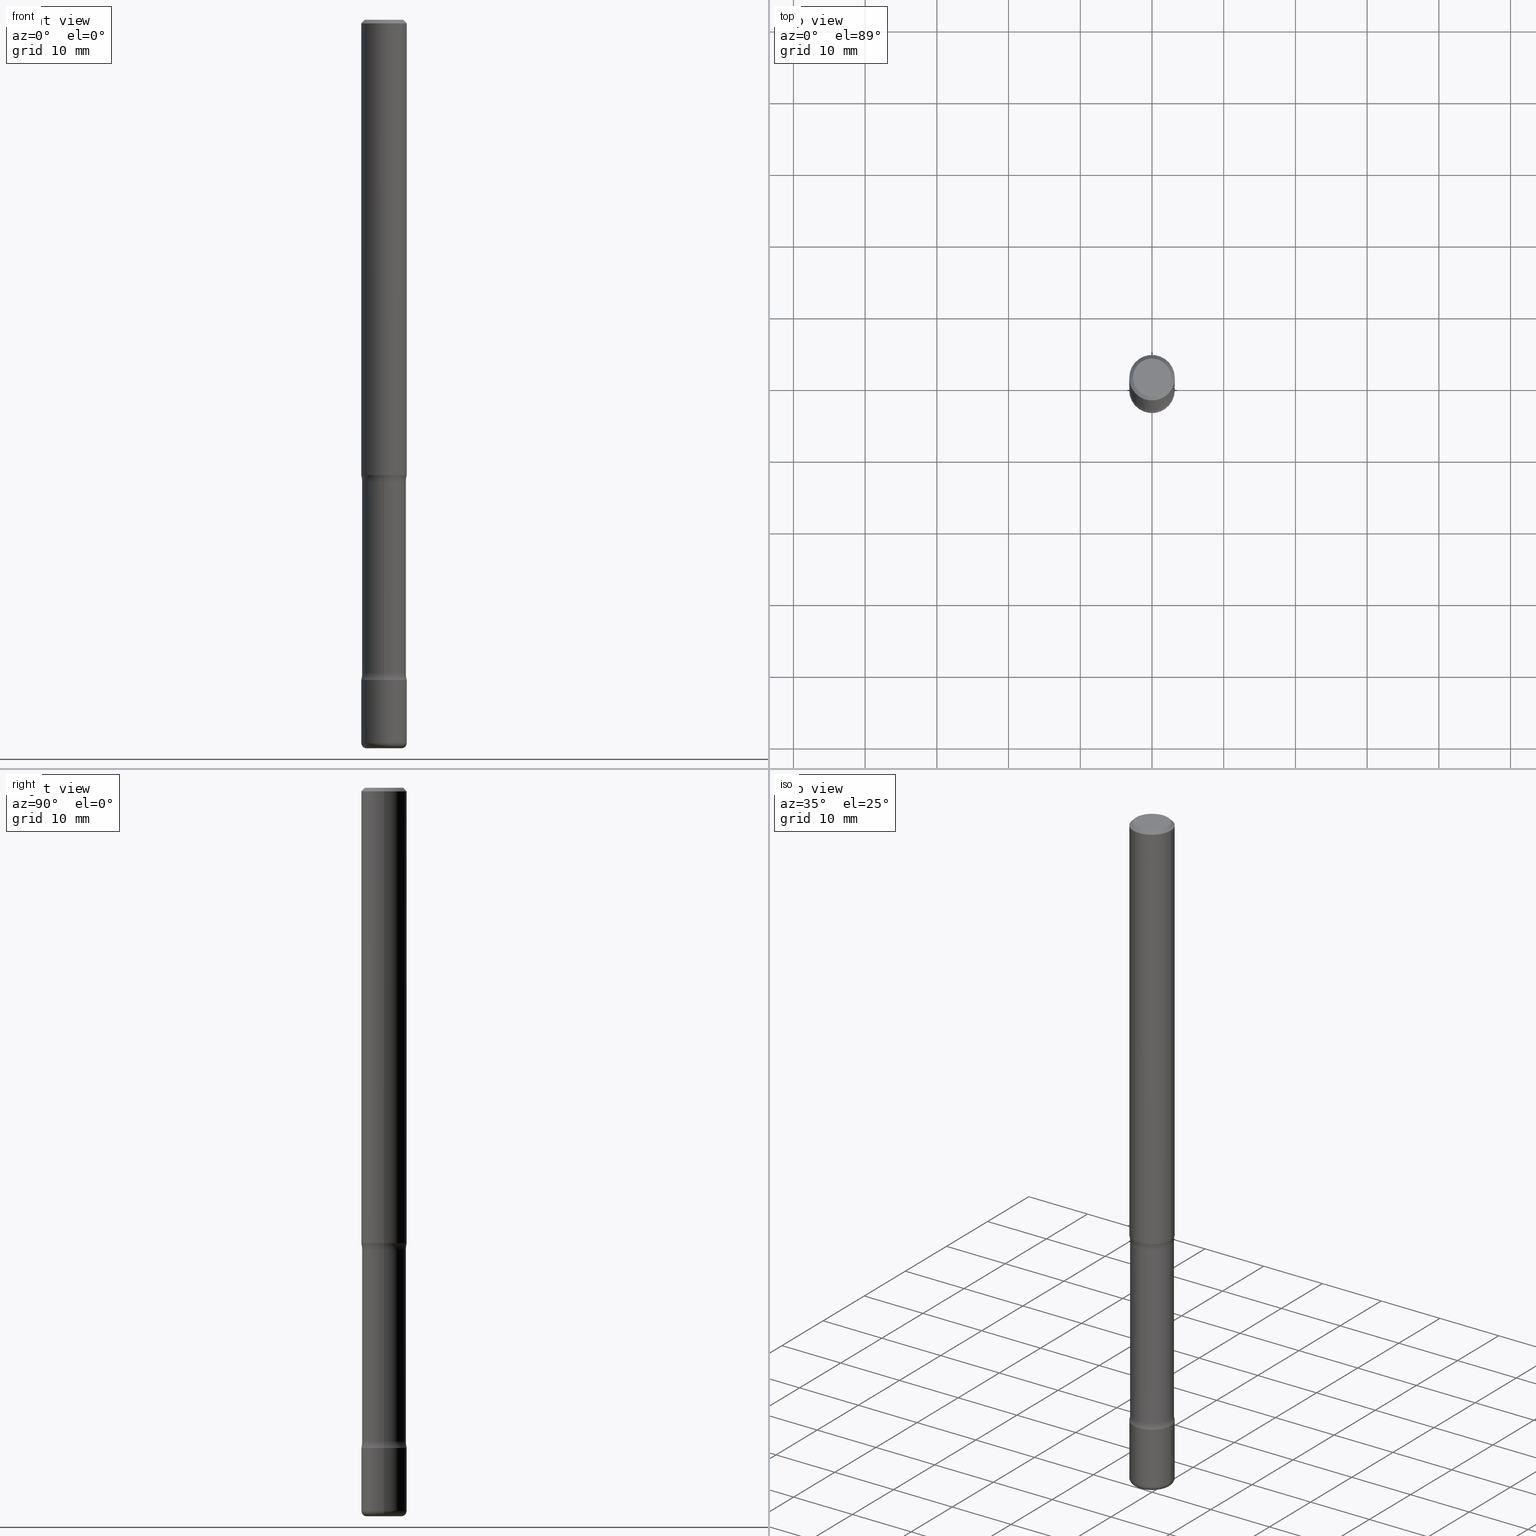
[diagram: canonical four-view strip — front | top / right | iso, engineering-drawing reading convention]
A machine part, canonical four-view strip (front | top / right | iso — engineering-drawing reading convention). The complete STEP part file that produces these views, byte-faithful:
ISO-10303-21;
HEADER;
FILE_DESCRIPTION (( 'STEP AP203' ),
    '1' );
FILE_NAME ('32756.STEP',
    '2023-03-11T07:00:17',
    ( '' ),
    ( '' ),
    'SwSTEP 2.0',
    'SolidWorks 2022',
    '' );
FILE_SCHEMA (( 'CONFIG_CONTROL_DESIGN' ));
ENDSEC;

DATA;
#1 = DIRECTION ( 'NONE',  ( 2.447145547181448741E-29, -3.489080150302255863E-15, -1.000000000000000000 ) ) ;
#2 = ORIENTED_EDGE ( 'NONE', *, *, #676, .T. ) ;
#3 = AXIS2_PLACEMENT_3D ( 'NONE', #505, #744, #300 ) ;
#4 = AXIS2_PLACEMENT_3D ( 'NONE', #788, #259, #665 ) ;
#5 = VECTOR ( 'NONE', #593, 39.37007874015748143 ) ;
#6 = APPROVAL_STATUS ( 'not_yet_approved' ) ;
#7 = AXIS2_PLACEMENT_3D ( 'NONE', #369, #420, #52 ) ;
#8 = DIRECTION ( 'NONE',  ( -1.000000000000000000, 6.982962677686266711E-15, 0.000000000000000000 ) ) ;
#9 = EDGE_CURVE ( 'NONE', #501, #189, #649, .T. ) ;
#10 = DATE_AND_TIME ( #580, #362 ) ;
#11 = CARTESIAN_POINT ( 'NONE',  ( 1.060531293745186782E-27, -1.514157617551786646E-13, -43.36719777667440923 ) ) ;
#12 = DIRECTION ( 'NONE',  ( 6.982962677686265922E-15, 1.000000000000000000, -3.489080150302255863E-15 ) ) ;
#13 = ORIENTED_EDGE ( 'NONE', *, *, #9, .T. ) ;
#14 = AXIS2_PLACEMENT_3D ( 'NONE', #745, #305, #507 ) ;
#15 = PERSON_AND_ORGANIZATION ( #144, #338 ) ;
#16 = AXIS2_PLACEMENT_3D ( 'NONE', #610, #252, #180 ) ;
#17 = CARTESIAN_POINT ( 'NONE',  ( 0.1250000000000000000, -1.473405124991807072E-14, -3.970000000000000195 ) ) ;
#18 = CIRCLE ( 'NONE', #485, 0.1250000000000000000 ) ;
#19 = CARTESIAN_POINT ( 'NONE',  ( 6.113672015462842613E-29, -8.728703347107864943E-15, -2.500000000000000000 ) ) ;
#20 = CARTESIAN_POINT ( 'NONE',  ( 6.199263423679323022E-29, -8.850905193967376503E-15, -2.535000000000000586 ) ) ;
#21 = EDGE_LOOP ( 'NONE', ( #60, #621 ) ) ;
#22 = CARTESIAN_POINT ( 'NONE',  ( 0.000000000000000000, 0.000000000000000000, 0.000000000000000000 ) ) ;
#23 = DIRECTION ( 'NONE',  ( -2.445468806185136877E-29, 3.491481338843145188E-15, 1.000000000000000000 ) ) ;
#24 = ORIENTED_EDGE ( 'NONE', *, *, #320, .F. ) ;
#25 = EDGE_CURVE ( 'NONE', #187, #667, #283, .T. ) ;
#26 = EDGE_CURVE ( 'NONE', #667, #207, #321, .T. ) ;
#27 = CIRCLE ( 'NONE', #192, 0.1250000000000000000 ) ;
#28 = AXIS2_PLACEMENT_3D ( 'NONE', #490, #720, #167 ) ;
#29 = CONICAL_SURFACE ( 'NONE', #349, 0.1249999999999996808, 0.7853981633974477239 ) ;
#30 = DIRECTION ( 'NONE',  ( 2.447145547181448741E-29, -3.489080150302255468E-15, -1.000000000000000000 ) ) ;
#31 = CARTESIAN_POINT ( 'NONE',  ( 9.775453865654978233E-29, -1.395497299716722484E-14, -3.997119036516930457 ) ) ;
#32 = DIRECTION ( 'NONE',  ( 1.000000000000000000, -6.982962677686266711E-15, 0.000000000000000000 ) ) ;
#33 = ORIENTED_EDGE ( 'NONE', *, *, #256, .T. ) ;
#34 = DIRECTION ( 'NONE',  ( 2.447145547181448741E-29, -3.489080150302255468E-15, -1.000000000000000000 ) ) ;
#35 = VERTEX_POINT ( 'NONE', #584 ) ;
#36 = ADVANCED_FACE ( 'NONE', ( #566 ), #551, .F. ) ;
#37 = CARTESIAN_POINT ( 'NONE',  ( 4.890937612370279289E-31, -6.982962677686299005E-17, -0.02000000000000002470 ) ) ;
#38 = EDGE_LOOP ( 'NONE', ( #786, #376, #101, #504 ) ) ;
#39 = DIRECTION ( 'NONE',  ( 6.982962677686265922E-15, 1.000000000000000000, -4.370956789862821150E-15 ) ) ;
#40 = CC_DESIGN_PERSON_AND_ORGANIZATION_ASSIGNMENT ( #77, #454, ( #770 ) ) ;
#41 = CIRCLE ( 'NONE', #684, 0.1250000000000000000 ) ;
#42 = AXIS2_PLACEMENT_3D ( 'NONE', #597, #223, #340 ) ;
#43 = FACE_OUTER_BOUND ( 'NONE', #316, .T. ) ;
#44 = CARTESIAN_POINT ( 'NONE',  ( 9.597836427155352739E-18, -1.395586652513355726E-14, -3.997119036516930457 ) ) ;
#45 = CIRCLE ( 'NONE', #125, 0.1249999999999996808 ) ;
#46 = ORIENTED_EDGE ( 'NONE', *, *, #752, .F. ) ;
#47 = ORIENTED_EDGE ( 'NONE', *, *, #284, .T. ) ;
#48 = EDGE_CURVE ( 'NONE', #440, #287, #243, .T. ) ;
#49 = FACE_OUTER_BOUND ( 'NONE', #535, .T. ) ;
#50 = EDGE_LOOP ( 'NONE', ( #790, #789 ) ) ;
#51 = ORIENTED_EDGE ( 'NONE', *, *, #666, .F. ) ;
#52 = DIRECTION ( 'NONE',  ( 1.000000000000000000, -6.982962677686262766E-15, 0.000000000000000000 ) ) ;
#53 = DIRECTION ( 'NONE',  ( 1.000000000000000000, -6.982962677686266711E-15, 4.883557194083112901E-29 ) ) ;
#54 = VERTEX_POINT ( 'NONE', #456 ) ;
#55 = ORIENTED_EDGE ( 'NONE', *, *, #175, .F. ) ;
#56 = CIRCLE ( 'NONE', #108, 0.1250000000000000278 ) ;
#57 = CIRCLE ( 'NONE', #711, 0.1250000000000000000 ) ;
#58 =( GEOMETRIC_REPRESENTATION_CONTEXT ( 3 ) GLOBAL_UNCERTAINTY_ASSIGNED_CONTEXT ( ( #403 ) ) GLOBAL_UNIT_ASSIGNED_CONTEXT ( ( #352, #196, #344 ) ) REPRESENTATION_CONTEXT ( 'NONE', 'WORKASPACE' ) );
#59 = CARTESIAN_POINT ( 'NONE',  ( 0.1250000000000000000, -9.601573681818649859E-15, -2.500000000000000000 ) ) ;
#60 = ORIENTED_EDGE ( 'NONE', *, *, #86, .T. ) ;
#61 = DIRECTION ( 'NONE',  ( -2.445468806185136597E-29, 3.491481338843145583E-15, 1.000000000000000000 ) ) ;
#62 = EDGE_CURVE ( 'NONE', #295, #251, #591, .T. ) ;
#63 = ORIENTED_EDGE ( 'NONE', *, *, #509, .F. ) ;
#64 = DIRECTION ( 'NONE',  ( 2.447145547181448741E-29, -3.489080150302255468E-15, -1.000000000000000000 ) ) ;
#65 = DIRECTION ( 'NONE',  ( -6.982962677686266711E-15, -1.000000000000000000, 3.491481338843145583E-15 ) ) ;
#66 = ORIENTED_EDGE ( 'NONE', *, *, #138, .F. ) ;
#67 = ADVANCED_FACE ( 'NONE', ( #273 ), #205, .F. ) ;
#68 = VERTEX_POINT ( 'NONE', #464 ) ;
#69 = VECTOR ( 'NONE', #23, 39.37007874015748143 ) ;
#70 = CARTESIAN_POINT ( 'NONE',  ( 8.779233014204640876E-29, -1.253441800644689261E-14, -3.590000000000000302 ) ) ;
#71 = AXIS2_PLACEMENT_3D ( 'NONE', #659, #291, #549 ) ;
#72 = CIRCLE ( 'NONE', #228, 0.08250000000000000389 ) ;
#73 = COORDINATED_UNIVERSAL_TIME_OFFSET ( 5, 0, .BEHIND. ) ;
#74 = CALENDAR_DATE ( 2023, 11, 3 ) ;
#75 = ORIENTED_EDGE ( 'NONE', *, *, #705, .F. ) ;
#76 = CC_DESIGN_PERSON_AND_ORGANIZATION_ASSIGNMENT ( #327, #195, ( #554 ) ) ;
#77 = PERSON_AND_ORGANIZATION ( #144, #338 ) ;
#78 = FACE_OUTER_BOUND ( 'NONE', #103, .T. ) ;
#79 = DESIGN_CONTEXT ( 'detailed design', #648, 'design' ) ;
#80 = AXIS2_PLACEMENT_3D ( 'NONE', #267, #461, #522 ) ;
#81 = PERSON_AND_ORGANIZATION ( #144, #338 ) ;
#82 = AXIS2_PLACEMENT_3D ( 'NONE', #686, #65, #318 ) ;
#83 = AXIS2_PLACEMENT_3D ( 'NONE', #533, #466, #714 ) ;
#84 = DIRECTION ( 'NONE',  ( -2.445468806185136597E-29, 3.491481338843145583E-15, 1.000000000000000000 ) ) ;
#85 = ORIENTED_EDGE ( 'NONE', *, *, #324, .F. ) ;
#86 = EDGE_CURVE ( 'NONE', #106, #679, #637, .T. ) ;
#87 = DIRECTION ( 'NONE',  ( 1.000000000000000000, -6.982962677686264344E-15, 4.883557194083112340E-29 ) ) ;
#88 = CARTESIAN_POINT ( 'NONE',  ( 6.111785681841991381E-29, -8.731404684216365878E-15, -2.500000000000000000 ) ) ;
#89 = CARTESIAN_POINT ( 'NONE',  ( -1.680822009453962116E-15, -0.2450000000000086831, -2.534999999999999698 ) ) ;
#90 = EDGE_CURVE ( 'NONE', #106, #251, #280, .T. ) ;
#91 = TOROIDAL_SURFACE ( 'NONE', #217, 0.09499999999999998723, 0.02999999999999998848 ) ;
#92 = AXIS2_PLACEMENT_3D ( 'NONE', #729, #173, #428 ) ;
#93 = CARTESIAN_POINT ( 'NONE',  ( 8.728703347108443769E-16, 0.1249999999999912847, -2.500000000000000444 ) ) ;
#94 = AXIS2_PLACEMENT_3D ( 'NONE', #603, #30, #288 ) ;
#95 = LINE ( 'NONE', #481, #639 ) ;
#96 = CARTESIAN_POINT ( 'NONE',  ( 0.09499999999999998723, -1.462930680975277735E-14, -4.000000000000000000 ) ) ;
#97 = ORIENTED_EDGE ( 'NONE', *, *, #692, .F. ) ;
#98 = DIRECTION ( 'NONE',  ( -6.982962677686265922E-15, -1.000000000000000000, 0.000000000000000000 ) ) ;
#99 = CARTESIAN_POINT ( 'NONE',  ( 9.781532051766610106E-29, -1.394626868870649960E-14, -3.997119036516930457 ) ) ;
#100 = FACE_OUTER_BOUND ( 'NONE', #312, .T. ) ;
#101 = ORIENTED_EDGE ( 'NONE', *, *, #215, .T. ) ;
#102 = EDGE_CURVE ( 'NONE', #801, #775, #377, .T. ) ;
#103 = EDGE_LOOP ( 'NONE', ( #182, #385, #361, #304 ) ) ;
#104 = LINE ( 'NONE', #44, #285 ) ;
#105 = FACE_OUTER_BOUND ( 'NONE', #38, .T. ) ;
#106 = VERTEX_POINT ( 'NONE', #758 ) ;
#107 = VERTEX_POINT ( 'NONE', #774 ) ;
#108 = AXIS2_PLACEMENT_3D ( 'NONE', #174, #111, #803 ) ;
#109 = TOROIDAL_SURFACE ( 'NONE', #264, 0.2450000000000001066, 0.1250000000000000000 ) ;
#110 = DIRECTION ( 'NONE',  ( 1.000000000000000000, -6.982962677686262766E-15, 0.000000000000000000 ) ) ;
#111 = DIRECTION ( 'NONE',  ( -2.445468806185136597E-29, 3.491481338843145583E-15, 1.000000000000000000 ) ) ;
#112 = ORIENTED_EDGE ( 'NONE', *, *, #676, .F. ) ;
#113 = PRODUCT_DEFINITION ( 'UNKNOWN', '', #554, #79 ) ;
#114 = DIRECTION ( 'NONE',  ( 1.000000000000000000, -6.982962677686261189E-15, 0.000000000000000000 ) ) ;
#115 = ORIENTED_EDGE ( 'NONE', *, *, #793, .F. ) ;
#116 = VERTEX_POINT ( 'NONE', #762 ) ;
#117 = ORIENTED_EDGE ( 'NONE', *, *, #154, .T. ) ;
#118 = EDGE_LOOP ( 'NONE', ( #120, #547 ) ) ;
#119 = CARTESIAN_POINT ( 'NONE',  ( -0.1199999999999999817, -7.876052064195743962E-15, -2.500000000000000000 ) ) ;
#120 = ORIENTED_EDGE ( 'NONE', *, *, #48, .F. ) ;
#121 = FACE_OUTER_BOUND ( 'NONE', #118, .T. ) ;
#122 = EDGE_LOOP ( 'NONE', ( #51, #33, #718, #463 ) ) ;
#123 = AXIS2_PLACEMENT_3D ( 'NONE', #89, #668, #157 ) ;
#124 = AXIS2_PLACEMENT_3D ( 'NONE', #141, #396, #129 ) ;
#125 = AXIS2_PLACEMENT_3D ( 'NONE', #171, #425, #664 ) ;
#126 = DIRECTION ( 'NONE',  ( -2.445468806185136597E-29, 3.491481338843145583E-15, 1.000000000000000000 ) ) ;
#127 = ADVANCED_FACE ( 'NONE', ( #142 ), #91, .T. ) ;
#128 = EDGE_CURVE ( 'NONE', #315, #401, #526, .T. ) ;
#129 = DIRECTION ( 'NONE',  ( 6.982962677686265922E-15, 1.000000000000000000, -4.553079989440434359E-15 ) ) ;
#130 = ORIENTED_EDGE ( 'NONE', *, *, #766, .T. ) ;
#131 = DIRECTION ( 'NONE',  ( 6.982962677686265922E-15, 1.000000000000000000, -3.489080150302255468E-15 ) ) ;
#132 = DATE_AND_TIME ( #447, #749 ) ;
#133 = ADVANCED_FACE ( 'NONE', ( #78 ), #534, .T. ) ;
#134 = DIRECTION ( 'NONE',  ( 1.000000000000000000, -6.860497997771530774E-15, 4.840828285702750353E-29 ) ) ;
#135 = PERSON_AND_ORGANIZATION_ROLE ( 'creator' ) ;
#136 = DIRECTION ( 'NONE',  ( 1.000000000000000000, -6.982962677686265922E-15, 4.876176775795935793E-29 ) ) ;
#137 = DIRECTION ( 'NONE',  ( 2.447145547181448741E-29, -3.489080150302255468E-15, -1.000000000000000000 ) ) ;
#138 = EDGE_CURVE ( 'NONE', #423, #315, #416, .T. ) ;
#139 = CLOSED_SHELL ( 'NONE', ( #609, #754, #258, #585, #446, #354 ) ) ;
#140 = AXIS2_PLACEMENT_3D ( 'NONE', #486, #179, #780 ) ;
#141 = CARTESIAN_POINT ( 'NONE',  ( 8.779174328269769684E-29, -1.253450204804582438E-14, -3.590000000000000302 ) ) ;
#142 = FACE_OUTER_BOUND ( 'NONE', #199, .T. ) ;
#143 = ORIENTED_EDGE ( 'NONE', *, *, #102, .T. ) ;
#144 = PERSON ( 'UNSPECIFIED', 'UNSPECIFIED', 'UNSPECIFIED', ('UNSPECIFIED'), ('UNSPECIFIED'), ('UNSPECIFIED') ) ;
#145 = APPROVAL_DATE_TIME ( #148, #765 ) ;
#146 = CYLINDRICAL_SURFACE ( 'NONE', #657, 0.1250000000000000000 ) ;
#147 = DIRECTION ( 'NONE',  ( 1.000000000000000000, -6.982962677686266711E-15, 4.883557194083112901E-29 ) ) ;
#148 = DATE_AND_TIME ( #201, #194 ) ;
#149 = DIRECTION ( 'NONE',  ( 1.000000000000000000, -6.982962677686262766E-15, 0.000000000000000000 ) ) ;
#150 = AXIS2_PLACEMENT_3D ( 'NONE', #716, #350, #39 ) ;
#151 = CIRCLE ( 'NONE', #337, 0.1249999999999996808 ) ;
#152 = FACE_OUTER_BOUND ( 'NONE', #122, .T. ) ;
#153 = DIRECTION ( 'NONE',  ( -0.7071067811865471286, 2.468850131082252722E-15, -0.7071067811865479058 ) ) ;
#154 = EDGE_CURVE ( 'NONE', #107, #662, #768, .T. ) ;
#155 = CYLINDRICAL_SURFACE ( 'NONE', #457, 0.1199999999999999817 ) ;
#156 = CARTESIAN_POINT ( 'NONE',  ( 6.199263423679323022E-29, -8.850905193967376503E-15, -2.535000000000000586 ) ) ;
#157 = DIRECTION ( 'NONE',  ( 6.860497997771530774E-15, 1.000000000000000000, 0.000000000000000000 ) ) ;
#158 = EDGE_CURVE ( 'NONE', #667, #187, #177, .T. ) ;
#159 = PLANE ( 'NONE',  #71 ) ;
#160 = EDGE_LOOP ( 'NONE', ( #242, #319, #233, #687 ) ) ;
#161 = AXIS2_PLACEMENT_3D ( 'NONE', #704, #471, #647 ) ;
#162 = AXIS2_PLACEMENT_3D ( 'NONE', #755, #255, #699 ) ;
#163 = CARTESIAN_POINT ( 'NONE',  ( 8.728703347108718885E-16, 0.1249999999999873296, -3.625000000000000444 ) ) ;
#164 = CARTESIAN_POINT ( 'NONE',  ( 8.379555213224406338E-16, 0.1199999999999875888, -3.590000000000000746 ) ) ;
#165 = DIRECTION ( 'NONE',  ( -2.445468806185136877E-29, 3.491481338843145188E-15, 1.000000000000000000 ) ) ;
#166 = EDGE_CURVE ( 'NONE', #801, #35, #772, .T. ) ;
#167 = DIRECTION ( 'NONE',  ( 1.000000000000000000, -6.982962677686265922E-15, 4.876176775795935793E-29 ) ) ;
#168 = ORIENTED_EDGE ( 'NONE', *, *, #489, .T. ) ;
#169 = PLANE ( 'NONE',  #497 ) ;
#170 = ORIENTED_EDGE ( 'NONE', *, *, #284, .F. ) ;
#171 = CARTESIAN_POINT ( 'NONE',  ( 4.890937612370279289E-31, -6.982962677686299005E-17, -0.02000000000000002470 ) ) ;
#172 = ORIENTED_EDGE ( 'NONE', *, *, #193, .F. ) ;
#173 = DIRECTION ( 'NONE',  ( -2.445468806185136597E-29, 3.491481338843145583E-15, 1.000000000000000000 ) ) ;
#174 = CARTESIAN_POINT ( 'NONE',  ( 9.708511160554992872E-29, -1.386118091520728738E-14, -3.970000000000000195 ) ) ;
#175 = EDGE_CURVE ( 'NONE', #245, #712, #430, .T. ) ;
#176 = ORIENTED_EDGE ( 'NONE', *, *, #9, .F. ) ;
#177 = CIRCLE ( 'NONE', #150, 0.1250000000000000000 ) ;
#178 = CONICAL_SURFACE ( 'NONE', #392, 1127.411546571649069, 1.535889741755015248 ) ;
#179 = DIRECTION ( 'NONE',  ( -2.438088387897960049E-29, 3.491481338843145188E-15, 1.000000000000000000 ) ) ;
#180 = DIRECTION ( 'NONE',  ( 1.000000000000000000, -6.982962677686261189E-15, 0.000000000000000000 ) ) ;
#181 = FACE_OUTER_BOUND ( 'NONE', #751, .T. ) ;
#182 = ORIENTED_EDGE ( 'NONE', *, *, #374, .T. ) ;
#183 = ORIENTED_EDGE ( 'NONE', *, *, #692, .T. ) ;
#184 = CARTESIAN_POINT ( 'NONE',  ( 0.1250000000000000000, -1.352949018801718435E-14, -3.624999999999999556 ) ) ;
#185 = ORIENTED_EDGE ( 'NONE', *, *, #232, .T. ) ;
#186 = ORIENTED_EDGE ( 'NONE', *, *, #232, .F. ) ;
#187 = VERTEX_POINT ( 'NONE', #163 ) ;
#188 = CARTESIAN_POINT ( 'NONE',  ( -8.404110047269245559E-16, -0.1200000000000126521, -3.589999999999999858 ) ) ;
#189 = VERTEX_POINT ( 'NONE', #93 ) ;
#190 = CARTESIAN_POINT ( 'NONE',  ( 6.199263423679323022E-29, -8.850905193967376503E-15, -2.535000000000000586 ) ) ;
#191 = DIRECTION ( 'NONE',  ( 2.447145547181448741E-29, -3.489080150302255468E-15, -1.000000000000000000 ) ) ;
#192 = AXIS2_PLACEMENT_3D ( 'NONE', #365, #126, #382 ) ;
#193 = EDGE_CURVE ( 'NONE', #679, #106, #614, .T. ) ;
#194 = LOCAL_TIME ( 2, 0, 17.00000000000000000, #760 ) ;
#195 = PERSON_AND_ORGANIZATION_ROLE ( 'design_supplier' ) ;
#196 =( NAMED_UNIT ( * ) PLANE_ANGLE_UNIT ( ) SI_UNIT ( $, .RADIAN. ) );
#197 = FACE_OUTER_BOUND ( 'NONE', #21, .T. ) ;
#198 = ORIENTED_EDGE ( 'NONE', *, *, #48, .T. ) ;
#199 = EDGE_LOOP ( 'NONE', ( #170, #257, #674, #611 ) ) ;
#200 = ADVANCED_FACE ( 'NONE', ( #602 ), #346, .F. ) ;
#201 = CALENDAR_DATE ( 2023, 11, 3 ) ;
#202 = VERTEX_POINT ( 'NONE', #737 ) ;
#203 = CARTESIAN_POINT ( 'NONE',  ( 7.332110811570555591E-16, 0.1049999999999996630, -3.644712843334789467E-16 ) ) ;
#204 = FACE_OUTER_BOUND ( 'NONE', #561, .T. ) ;
#205 = TOROIDAL_SURFACE ( 'NONE', #390, 0.2449999999999998568, 0.1250000000000000000 ) ;
#206 = CIRCLE ( 'NONE', #685, 0.1199999999999998429 ) ;
#207 = VERTEX_POINT ( 'NONE', #188 ) ;
#208 = PERSON_AND_ORGANIZATION ( #144, #338 ) ;
#209 = CARTESIAN_POINT ( 'NONE',  ( -8.232597597324858622E-16, -0.1200000000000139289, -3.997119036516930013 ) ) ;
#210 = DIRECTION ( 'NONE',  ( -2.445468806185136597E-29, 3.491481338843145583E-15, 1.000000000000000000 ) ) ;
#211 = LINE ( 'NONE', #543, #596 ) ;
#212 = APPROVAL_DATE_TIME ( #586, #719 ) ;
#213 = CARTESIAN_POINT ( 'NONE',  ( 9.781875224740545266E-29, -1.396592535537258075E-14, -3.999999999999999556 ) ) ;
#214 = CARTESIAN_POINT ( 'NONE',  ( 6.199263423679323022E-29, -8.850905193967376503E-15, -2.535000000000000586 ) ) ;
#215 = EDGE_CURVE ( 'NONE', #775, #54, #623, .T. ) ;
#216 = CARTESIAN_POINT ( 'NONE',  ( 0.1049999999999996630, -8.238720831321552978E-16, 4.268512490105855498E-18 ) ) ;
#217 = AXIS2_PLACEMENT_3D ( 'NONE', #700, #210, #400 ) ;
#218 = CONICAL_SURFACE ( 'NONE', #747, 1127.411546571649069, 1.535889741755015248 ) ;
#219 = CARTESIAN_POINT ( 'NONE',  ( 6.113672015462842613E-29, -8.728703347107864943E-15, -2.500000000000000000 ) ) ;
#220 = CARTESIAN_POINT ( 'NONE',  ( 0.1249999999999998335, -8.728703347107821555E-16, 6.095220969744911333E-30 ) ) ;
#221 = FACE_OUTER_BOUND ( 'NONE', #160, .T. ) ;
#222 = DIRECTION ( 'NONE',  ( -2.445468806185136597E-29, 3.491481338843145583E-15, 1.000000000000000000 ) ) ;
#223 = DIRECTION ( 'NONE',  ( -2.445468806185136597E-29, 3.491481338843145583E-15, 1.000000000000000000 ) ) ;
#224 = CC_DESIGN_DATE_AND_TIME_ASSIGNMENT ( #10, #696, ( #113 ) ) ;
#225 = FACE_OUTER_BOUND ( 'NONE', #262, .T. ) ;
#226 = VECTOR ( 'NONE', #153, 39.37007874015748143 ) ;
#227 = AXIS2_PLACEMENT_3D ( 'NONE', #384, #448, #632 ) ;
#228 = AXIS2_PLACEMENT_3D ( 'NONE', #213, #660, #279 ) ;
#229 = DIRECTION ( 'NONE',  ( -2.445468806185136597E-29, 3.491481338843145583E-15, 1.000000000000000000 ) ) ;
#230 = DIRECTION ( 'NONE',  ( 2.445468806185136597E-29, -3.491481338843145583E-15, -1.000000000000000000 ) ) ;
#231 = EDGE_LOOP ( 'NONE', ( #198, #47, #85, #427 ) ) ;
#232 = EDGE_CURVE ( 'NONE', #315, #423, #27, .T. ) ;
#233 = ORIENTED_EDGE ( 'NONE', *, *, #320, .T. ) ;
#234 = CARTESIAN_POINT ( 'NONE',  ( 0.1199999999999998429, -9.688860715289726615E-15, -2.535000000000000586 ) ) ;
#235 = DIRECTION ( 'NONE',  ( 1.000000000000000000, -6.982962677686266711E-15, 4.883557194083112901E-29 ) ) ;
#236 = ADVANCED_FACE ( 'NONE', ( #49 ), #673, .T. ) ;
#237 = ORIENTED_EDGE ( 'NONE', *, *, #175, .T. ) ;
#238 = FACE_BOUND ( 'NONE', #364, .T. ) ;
#239 = DIRECTION ( 'NONE',  ( 2.447145547181448741E-29, -3.489080150302255468E-15, -1.000000000000000000 ) ) ;
#240 = DIRECTION ( 'NONE',  ( 2.447145547181448741E-29, -3.489080150302255468E-15, -1.000000000000000000 ) ) ;
#241 = EDGE_CURVE ( 'NONE', #207, #742, #274, .T. ) ;
#242 = ORIENTED_EDGE ( 'NONE', *, *, #548, .F. ) ;
#243 = CIRCLE ( 'NONE', #80, 0.09499999999999998723 ) ;
#244 = AXIS2_PLACEMENT_3D ( 'NONE', #424, #663, #356 ) ;
#245 = VERTEX_POINT ( 'NONE', #495 ) ;
#246 = LOCAL_TIME ( 2, 0, 17.00000000000000000, #73 ) ;
#247 = FACE_OUTER_BOUND ( 'NONE', #436, .T. ) ;
#248 = DIRECTION ( 'NONE',  ( -1.000000000000000000, 7.105427357600993970E-15, 0.000000000000000000 ) ) ;
#249 = ORIENTED_EDGE ( 'NONE', *, *, #422, .T. ) ;
#250 = EDGE_CURVE ( 'NONE', #712, #189, #41, .T. ) ;
#251 = VERTEX_POINT ( 'NONE', #426 ) ;
#252 = DIRECTION ( 'NONE',  ( -2.445468806185136597E-29, 3.491481338843145583E-15, 1.000000000000000000 ) ) ;
#253 = DIRECTION ( 'NONE',  ( 2.447145547181448741E-29, -3.489080150302255863E-15, -1.000000000000000000 ) ) ;
#254 = ORIENTED_EDGE ( 'NONE', *, *, #666, .T. ) ;
#255 = DIRECTION ( 'NONE',  ( 2.447145547181448741E-29, -3.489080150302255468E-15, -1.000000000000000000 ) ) ;
#256 = EDGE_CURVE ( 'NONE', #116, #633, #56, .T. ) ;
#257 = ORIENTED_EDGE ( 'NONE', *, *, #325, .T. ) ;
#258 = ADVANCED_FACE ( 'NONE', ( #181 ), #496, .T. ) ;
#259 = DIRECTION ( 'NONE',  ( -2.445468806185136597E-29, 3.491481338843145583E-15, 1.000000000000000000 ) ) ;
#260 = DIRECTION ( 'NONE',  ( 0.000000000000000000, 0.000000000000000000, 1.000000000000000000 ) ) ;
#261 = DIRECTION ( 'NONE',  ( -2.445468806185136597E-29, 3.491481338843145583E-15, 1.000000000000000000 ) ) ;
#262 = EDGE_LOOP ( 'NONE', ( #411, #2, #117, #560 ) ) ;
#263 = TOROIDAL_SURFACE ( 'NONE', #722, 0.2450000000000001066, 0.1250000000000000000 ) ;
#264 = AXIS2_PLACEMENT_3D ( 'NONE', #70, #518, #131 ) ;
#265 = ADVANCED_FACE ( 'NONE', ( #105 ), #263, .F. ) ;
#266 = CC_DESIGN_APPROVAL ( #719, ( #313 ) ) ;
#267 = CARTESIAN_POINT ( 'NONE',  ( 9.781875224740546387E-29, -1.396592535537258233E-14, -4.000000000000000000 ) ) ;
#268 = CC_DESIGN_PERSON_AND_ORGANIZATION_ASSIGNMENT ( #706, #135, ( #113 ) ) ;
#269 = APPROVAL_ROLE ( '' ) ;
#270 = CARTESIAN_POINT ( 'NONE',  ( 8.379555213224128264E-16, 0.1199999999999909889, -2.535000000000001030 ) ) ;
#271 = CARTESIAN_POINT ( 'NONE',  ( 0.000000000000000000, 0.000000000000000000, 0.000000000000000000 ) ) ;
#272 = PLANE ( 'NONE',  #697 ) ;
#273 = FACE_OUTER_BOUND ( 'NONE', #570, .T. ) ;
#274 = CIRCLE ( 'NONE', #797, 0.1200000000000001205 ) ;
#275 = AXIS2_PLACEMENT_3D ( 'NONE', #459, #326, #87 ) ;
#276 = APPROVAL_ROLE ( '' ) ;
#277 = DIRECTION ( 'NONE',  ( 1.000000000000000000, -6.982962677686270655E-15, 0.000000000000000000 ) ) ;
#278 = EDGE_CURVE ( 'NONE', #801, #484, #307, .T. ) ;
#279 = DIRECTION ( 'NONE',  ( 1.000000000000000000, -6.982962677686279332E-15, 0.000000000000000000 ) ) ;
#280 = LINE ( 'NONE', #538, #226 ) ;
#281 = CARTESIAN_POINT ( 'NONE',  ( -2.199483274483268493E-29, -2.850133821655910914E-14, -3.624999999999999556 ) ) ;
#282 = CARTESIAN_POINT ( 'NONE',  ( 0.1249999999999996808, -9.273918764983021797E-16, -0.02000000000000002470 ) ) ;
#283 = CIRCLE ( 'NONE', #468, 0.1250000000000000000 ) ;
#284 = EDGE_CURVE ( 'NONE', #287, #116, #779, .T. ) ;
#285 = VECTOR ( 'NONE', #299, 39.37007874015748854 ) ;
#286 = CYLINDRICAL_SURFACE ( 'NONE', #294, 0.1250000000000000000 ) ;
#287 = VERTEX_POINT ( 'NONE', #740 ) ;
#288 = DIRECTION ( 'NONE',  ( 6.982962677686265922E-15, 1.000000000000000000, -3.489080150302255468E-15 ) ) ;
#289 = FACE_OUTER_BOUND ( 'NONE', #794, .T. ) ;
#290 = LINE ( 'NONE', #764, #5 ) ;
#291 = DIRECTION ( 'NONE',  ( -2.447145547181448461E-29, 3.489080150302255863E-15, 1.000000000000000000 ) ) ;
#292 = DIRECTION ( 'NONE',  ( 2.445468806185136597E-29, -3.491481338843145583E-15, -1.000000000000000000 ) ) ;
#293 = AXIS2_PLACEMENT_3D ( 'NONE', #527, #397, #707 ) ;
#294 = AXIS2_PLACEMENT_3D ( 'NONE', #22, #222, #413 ) ;
#295 = VERTEX_POINT ( 'NONE', #680 ) ;
#296 = APPLICATION_CONTEXT ( 'configuration controlled 3d designs of mechanical parts and assemblies' ) ;
#297 = CIRCLE ( 'NONE', #381, 0.1250000000000000000 ) ;
#298 = DIRECTION ( 'NONE',  ( 1.000000000000000000, -6.982962677686261189E-15, 0.000000000000000000 ) ) ;
#299 = DIRECTION ( 'NONE',  ( 0.9993908270190959842, -6.978169709227524922E-15, -0.03489949670249575808 ) ) ;
#300 = DIRECTION ( 'NONE',  ( 1.000000000000000000, -6.982962677686261189E-15, 0.000000000000000000 ) ) ;
#301 = EDGE_LOOP ( 'NONE', ( #168, #641, #553, #738 ) ) ;
#302 = DIRECTION ( 'NONE',  ( -2.445468806185136597E-29, 3.491481338843145583E-15, 1.000000000000000000 ) ) ;
#303 = APPROVAL ( #589, 'UNSPECIFIED' ) ;
#304 = ORIENTED_EDGE ( 'NONE', *, *, #465, .F. ) ;
#305 = DIRECTION ( 'NONE',  ( -1.000000000000000000, 6.982962677686265922E-15, -4.883557194083112340E-29 ) ) ;
#306 = DIRECTION ( 'NONE',  ( -2.445468806185136597E-29, 3.491481338843145583E-15, 1.000000000000000000 ) ) ;
#307 = LINE ( 'NONE', #119, #512 ) ;
#308 = EDGE_CURVE ( 'NONE', #484, #401, #710, .T. ) ;
#309 = VERTEX_POINT ( 'NONE', #184 ) ;
#310 = AXIS2_PLACEMENT_3D ( 'NONE', #608, #419, #787 ) ;
#311 = VECTOR ( 'NONE', #1, 39.37007874015748143 ) ;
#312 = EDGE_LOOP ( 'NONE', ( #371, #575 ) ) ;
#313 = SECURITY_CLASSIFICATION ( '', '', #645 ) ;
#314 = CARTESIAN_POINT ( 'NONE',  ( 8.379555213224496071E-16, 0.1199999999999860345, -3.997119036516931345 ) ) ;
#315 = VERTEX_POINT ( 'NONE', #59 ) ;
#316 = EDGE_LOOP ( 'NONE', ( #391, #143, #557, #804 ) ) ;
#317 = DIRECTION ( 'NONE',  ( 6.982962677686265922E-15, 1.000000000000000000, -4.553079989440439092E-15 ) ) ;
#318 = DIRECTION ( 'NONE',  ( 1.000000000000000000, -6.982962677686270655E-15, 0.000000000000000000 ) ) ;
#319 = ORIENTED_EDGE ( 'NONE', *, *, #508, .T. ) ;
#320 = EDGE_CURVE ( 'NONE', #501, #742, #438, .T. ) ;
#321 = CIRCLE ( 'NONE', #569, 0.1250000000000000000 ) ;
#322 = ORIENTED_EDGE ( 'NONE', *, *, #613, .F. ) ;
#323 = CIRCLE ( 'NONE', #92, 0.08250000000000000389 ) ;
#324 = EDGE_CURVE ( 'NONE', #633, #116, #358, .T. ) ;
#325 = EDGE_CURVE ( 'NONE', #287, #440, #735, .T. ) ;
#326 = DIRECTION ( 'NONE',  ( -2.445468806185136597E-29, 3.491481338843145583E-15, 1.000000000000000000 ) ) ;
#327 = PERSON_AND_ORGANIZATION ( #144, #338 ) ;
#328 = DIRECTION ( 'NONE',  ( 2.438088387897960049E-29, -3.491481338843145188E-15, -1.000000000000000000 ) ) ;
#329 = DIRECTION ( 'NONE',  ( 1.000000000000000000, -6.982962677686261977E-15, 0.000000000000000000 ) ) ;
#330 = DIRECTION ( 'NONE',  ( -2.445468806185136597E-29, 3.491481338843145583E-15, 1.000000000000000000 ) ) ;
#331 = ADVANCED_FACE ( 'NONE', ( #521 ), #109, .F. ) ;
#332 = APPROVAL_STATUS ( 'not_yet_approved' ) ;
#333 = ORIENTED_EDGE ( 'NONE', *, *, #250, .T. ) ;
#334 = CARTESIAN_POINT ( 'NONE',  ( -0.1250000000000000000, -1.237072196455672054E-14, -3.624999999999999556 ) ) ;
#335 = DIRECTION ( 'NONE',  ( -2.445468806185136597E-29, 3.491481338843145583E-15, 1.000000000000000000 ) ) ;
#336 = AXIS2_PLACEMENT_3D ( 'NONE', #435, #677, #357 ) ;
#337 = AXIS2_PLACEMENT_3D ( 'NONE', #472, #412, #32 ) ;
#338 = ORGANIZATION ( 'UNSPECIFIED', 'UNSPECIFIED', '' ) ;
#339 = APPROVAL_DATE_TIME ( #524, #303 ) ;
#340 = DIRECTION ( 'NONE',  ( 1.000000000000000000, -6.982962677686266711E-15, 4.876176775795935793E-29 ) ) ;
#341 = ADVANCED_FACE ( 'NONE', ( #523 ), #528, .T. ) ;
#342 = PLANE ( 'NONE',  #552 ) ;
#343 = DIRECTION ( 'NONE',  ( 6.982962677686265922E-15, 1.000000000000000000, -4.370956789862821150E-15 ) ) ;
#344 =( NAMED_UNIT ( * ) SI_UNIT ( $, .STERADIAN. ) SOLID_ANGLE_UNIT ( ) );
#345 = EDGE_CURVE ( 'NONE', #679, #662, #387, .T. ) ;
#346 = TOROIDAL_SURFACE ( 'NONE', #359, 0.2449999999999998568, 0.1250000000000000000 ) ;
#347 = ADVANCED_FACE ( 'NONE', ( #221 ), #155, .T. ) ;
#348 = VECTOR ( 'NONE', #476, 39.37007874015748143 ) ;
#349 = AXIS2_PLACEMENT_3D ( 'NONE', #37, #292, #791 ) ;
#350 = DIRECTION ( 'NONE',  ( 2.447145547181448741E-29, -3.489080150302255468E-15, -1.000000000000000000 ) ) ;
#351 = ORIENTED_EDGE ( 'NONE', *, *, #705, .T. ) ;
#352 =( CONVERSION_BASED_UNIT ( 'INCH', #691 ) LENGTH_UNIT ( ) NAMED_UNIT ( #769 ) );
#353 = ORIENTED_EDGE ( 'NONE', *, *, #398, .F. ) ;
#354 = ADVANCED_FACE ( 'NONE', ( #225 ), #421, .T. ) ;
#355 = ORIENTED_EDGE ( 'NONE', *, *, #128, .F. ) ;
#356 = DIRECTION ( 'NONE',  ( 1.000000000000000000, -6.982962677686270655E-15, 0.000000000000000000 ) ) ;
#357 = DIRECTION ( 'NONE',  ( -1.000000000000000000, 6.982962677686266711E-15, 0.000000000000000000 ) ) ;
#358 = CIRCLE ( 'NONE', #3, 0.1250000000000000278 ) ;
#359 = AXIS2_PLACEMENT_3D ( 'NONE', #20, #631, #235 ) ;
#360 = CIRCLE ( 'NONE', #162, 0.1199999999999998429 ) ;
#361 = ORIENTED_EDGE ( 'NONE', *, *, #517, .F. ) ;
#362 = LOCAL_TIME ( 2, 0, 17.00000000000000000, #753 ) ;
#363 = EDGE_CURVE ( 'NONE', #633, #309, #95, .T. ) ;
#364 = EDGE_LOOP ( 'NONE', ( #678, #183 ) ) ;
#365 = CARTESIAN_POINT ( 'NONE',  ( 6.113672015462842613E-29, -8.728703347107864943E-15, -2.500000000000000000 ) ) ;
#366 = VERTEX_POINT ( 'NONE', #99 ) ;
#367 = CARTESIAN_POINT ( 'NONE',  ( 0.1199999999999999817, -9.566658868430215055E-15, -2.500000000000000000 ) ) ;
#368 = ORIENTED_EDGE ( 'NONE', *, *, #26, .T. ) ;
#369 = CARTESIAN_POINT ( 'NONE',  ( 8.864824422421120163E-29, -1.265661985330640259E-14, -3.624999999999999556 ) ) ;
#370 = DIRECTION ( 'NONE',  ( 6.982962677686265922E-15, 1.000000000000000000, -4.370956789862821150E-15 ) ) ;
#371 = ORIENTED_EDGE ( 'NONE', *, *, #25, .T. ) ;
#372 = ORIENTED_EDGE ( 'NONE', *, *, #90, .F. ) ;
#373 = CARTESIAN_POINT ( 'NONE',  ( 8.864824422421120163E-29, -1.265661985330640259E-14, -3.624999999999999556 ) ) ;
#374 = EDGE_CURVE ( 'NONE', #775, #801, #417, .T. ) ;
#375 = CARTESIAN_POINT ( 'NONE',  ( 0.2450000000000001066, -1.424524386248003079E-14, -3.590000000000000302 ) ) ;
#376 = ORIENTED_EDGE ( 'NONE', *, *, #374, .F. ) ;
#377 = CIRCLE ( 'NONE', #670, 0.1200000000000001205 ) ;
#378 = AXIS2_PLACEMENT_3D ( 'NONE', #510, #559, #329 ) ;
#379 = FACE_OUTER_BOUND ( 'NONE', #50, .T. ) ;
#380 = EDGE_LOOP ( 'NONE', ( #66, #351, #578, #355 ) ) ;
#381 = AXIS2_PLACEMENT_3D ( 'NONE', #802, #302, #110 ) ;
#382 = DIRECTION ( 'NONE',  ( 1.000000000000000000, -6.982962677686270655E-15, 0.000000000000000000 ) ) ;
#383 = EDGE_CURVE ( 'NONE', #309, #616, #723, .T. ) ;
#384 = CARTESIAN_POINT ( 'NONE',  ( 8.779233014204640876E-29, -1.253441800644689261E-14, -3.590000000000000302 ) ) ;
#385 = ORIENTED_EDGE ( 'NONE', *, *, #278, .T. ) ;
#386 = DIRECTION ( 'NONE',  ( 6.860497997771530774E-15, 1.000000000000000000, 0.000000000000000000 ) ) ;
#387 = LINE ( 'NONE', #282, #348 ) ;
#388 = PERSON_AND_ORGANIZATION_ROLE ( 'creator' ) ;
#389 = CARTESIAN_POINT ( 'NONE',  ( 6.113672015462842613E-29, -8.728703347107864943E-15, -2.500000000000000000 ) ) ;
#390 = AXIS2_PLACEMENT_3D ( 'NONE', #214, #598, #147 ) ;
#391 = ORIENTED_EDGE ( 'NONE', *, *, #278, .F. ) ;
#392 = AXIS2_PLACEMENT_3D ( 'NONE', #630, #230, #488 ) ;
#393 = ADVANCED_FACE ( 'NONE', ( #683 ), #178, .F. ) ;
#394 = CIRCLE ( 'NONE', #83, 0.1250000000000000278 ) ;
#395 = ORIENTED_EDGE ( 'NONE', *, *, #508, .F. ) ;
#396 = DIRECTION ( 'NONE',  ( 2.447145547181448741E-29, -3.489080150302255468E-15, -1.000000000000000000 ) ) ;
#397 = DIRECTION ( 'NONE',  ( -2.445468806185136597E-29, 3.491481338843145583E-15, 1.000000000000000000 ) ) ;
#398 = EDGE_CURVE ( 'NONE', #366, #68, #104, .T. ) ;
#399 = CARTESIAN_POINT ( 'NONE',  ( 0.000000000000000000, 0.000000000000000000, 0.000000000000000000 ) ) ;
#400 = DIRECTION ( 'NONE',  ( 1.000000000000000000, -6.982962677686264344E-15, 4.883557194083112340E-29 ) ) ;
#401 = VERTEX_POINT ( 'NONE', #234 ) ;
#402 = EDGE_CURVE ( 'NONE', #202, #68, #323, .T. ) ;
#403 = UNCERTAINTY_MEASURE_WITH_UNIT (LENGTH_MEASURE( 1.000000000000000082E-05 ), #352, 'distance_accuracy_value', 'NONE');
#404 = EDGE_CURVE ( 'NONE', #189, #712, #57, .T. ) ;
#405 = DIRECTION ( 'NONE',  ( 2.447145547181448741E-29, -3.489080150302255468E-15, -1.000000000000000000 ) ) ;
#406 = ORIENTED_EDGE ( 'NONE', *, *, #345, .T. ) ;
#407 = AXIS2_PLACEMENT_3D ( 'NONE', #617, #64, #317 ) ;
#408 = AXIS2_PLACEMENT_3D ( 'NONE', #771, #418, #149 ) ;
#409 = APPROVAL_PERSON_ORGANIZATION ( #81, #719, #452 ) ;
#410 = DIRECTION ( 'NONE',  ( 2.438088387897960049E-29, -3.491481338843145188E-15, -1.000000000000000000 ) ) ;
#411 = ORIENTED_EDGE ( 'NONE', *, *, #62, .F. ) ;
#412 = DIRECTION ( 'NONE',  ( -2.445468806185136597E-29, 3.491481338843145583E-15, 1.000000000000000000 ) ) ;
#413 = DIRECTION ( 'NONE',  ( 1.000000000000000000, -6.982962677686266711E-15, 4.876176775795935793E-29 ) ) ;
#414 = DIRECTION ( 'NONE',  ( -0.9993908270190959842, 6.856857904024576981E-15, -0.03489949670249575808 ) ) ;
#415 = DIRECTION ( 'NONE',  ( 2.447145547181448741E-29, -3.489080150302255468E-15, -1.000000000000000000 ) ) ;
#416 = CIRCLE ( 'NONE', #734, 0.1250000000000000000 ) ;
#417 = CIRCLE ( 'NONE', #16, 0.1200000000000001205 ) ;
#418 = DIRECTION ( 'NONE',  ( -2.445468806185136597E-29, 3.491481338843145583E-15, 1.000000000000000000 ) ) ;
#419 = DIRECTION ( 'NONE',  ( -2.445468806185136597E-29, 3.491481338843145583E-15, 1.000000000000000000 ) ) ;
#420 = DIRECTION ( 'NONE',  ( -2.445468806185136597E-29, 3.491481338843145583E-15, 1.000000000000000000 ) ) ;
#421 = CYLINDRICAL_SURFACE ( 'NONE', #582, 0.1249999999999998335 ) ;
#422 = EDGE_CURVE ( 'NONE', #251, #662, #151, .T. ) ;
#423 = VERTEX_POINT ( 'NONE', #653 ) ;
#424 = CARTESIAN_POINT ( 'NONE',  ( 6.113672015462842613E-29, -8.728703347107864943E-15, -2.500000000000000000 ) ) ;
#425 = DIRECTION ( 'NONE',  ( -2.445468806185136597E-29, 3.491481338843145583E-15, 1.000000000000000000 ) ) ;
#426 = CARTESIAN_POINT ( 'NONE',  ( -0.1249999999999996808, 8.030407079339180685E-16, -0.02000000000000002470 ) ) ;
#427 = ORIENTED_EDGE ( 'NONE', *, *, #573, .F. ) ;
#428 = DIRECTION ( 'NONE',  ( 1.000000000000000000, -6.982962677686279332E-15, 0.000000000000000000 ) ) ;
#429 = CARTESIAN_POINT ( 'NONE',  ( 8.779174328269769684E-29, -1.253450204804582438E-14, -3.590000000000000302 ) ) ;
#430 = CIRCLE ( 'NONE', #123, 0.1250000000000000000 ) ;
#431 = CIRCLE ( 'NONE', #539, 0.1250000000000000000 ) ;
#432 = EDGE_LOOP ( 'NONE', ( #322, #732 ) ) ;
#433 = LINE ( 'NONE', #367, #625 ) ;
#434 = CARTESIAN_POINT ( 'NONE',  ( -8.575622497213803086E-16, -0.1250000000000087430, -2.499999999999999556 ) ) ;
#435 = CARTESIAN_POINT ( 'NONE',  ( 4.890937612370279289E-31, -6.982962677686299005E-17, -0.02000000000000002470 ) ) ;
#436 = EDGE_LOOP ( 'NONE', ( #172, #406, #743, #372 ) ) ;
#437 = CARTESIAN_POINT ( 'NONE',  ( 8.864824422421120163E-29, -1.265661985330640259E-14, -3.624999999999999556 ) ) ;
#438 = LINE ( 'NONE', #314, #579 ) ;
#439 = ORIENTED_EDGE ( 'NONE', *, *, #102, .F. ) ;
#440 = VERTEX_POINT ( 'NONE', #96 ) ;
#441 = AXIS2_PLACEMENT_3D ( 'NONE', #798, #576, #248 ) ;
#442 = AXIS2_PLACEMENT_3D ( 'NONE', #203, #328, #701 ) ;
#443 = CARTESIAN_POINT ( 'NONE',  ( 6.113672015462842613E-29, -8.728703347107864943E-15, -2.500000000000000000 ) ) ;
#444 = EDGE_LOOP ( 'NONE', ( #353, #532, #97 ) ) ;
#445 = LOCAL_TIME ( 2, 0, 17.00000000000000000, #757 ) ;
#446 = ADVANCED_FACE ( 'NONE', ( #289 ), #477, .F. ) ;
#447 = CALENDAR_DATE ( 2023, 11, 3 ) ;
#448 = DIRECTION ( 'NONE',  ( -2.445468806185136597E-29, 3.491481338843145583E-15, 1.000000000000000000 ) ) ;
#449 = MANIFOLD_SOLID_BREP ( 'Body-Move/Copy2[2]', #139 ) ;
#450 = DIRECTION ( 'NONE',  ( 6.982962677686265922E-15, 1.000000000000000000, -4.370956789862821150E-15 ) ) ;
#451 = ADVANCED_FACE ( 'NONE', ( #100 ), #159, .F. ) ;
#452 = APPROVAL_ROLE ( '' ) ;
#453 = CARTESIAN_POINT ( 'NONE',  ( -1.680822009453938056E-15, -0.2450000000000126521, -3.589999999999998970 ) ) ;
#454 = PERSON_AND_ORGANIZATION_ROLE ( 'design_owner' ) ;
#455 = CLOSED_SHELL ( 'NONE', ( #498, #558, #341, #470, #127, #601, #480, #393 ) ) ;
#456 = CARTESIAN_POINT ( 'NONE',  ( 0.1249999999999999861, -1.352949018801718435E-14, -3.624999999999999556 ) ) ;
#457 = AXIS2_PLACEMENT_3D ( 'NONE', #31, #415, #545 ) ;
#458 = CIRCLE ( 'NONE', #672, 0.1199999999999998429 ) ;
#459 = CARTESIAN_POINT ( 'NONE',  ( 9.708511160554992872E-29, -1.386118091520728738E-14, -3.970000000000000195 ) ) ;
#460 = PERSON_AND_ORGANIZATION ( #144, #338 ) ;
#461 = DIRECTION ( 'NONE',  ( -2.445468806185136597E-29, 3.491481338843145583E-15, 1.000000000000000000 ) ) ;
#462 = CC_DESIGN_DATE_AND_TIME_ASSIGNMENT ( #132, #530, ( #313 ) ) ;
#463 = ORIENTED_EDGE ( 'NONE', *, *, #746, .F. ) ;
#464 = CARTESIAN_POINT ( 'NONE',  ( 0.08249999999999986511, -1.453191644018873135E-14, -3.999999999999999556 ) ) ;
#465 = EDGE_CURVE ( 'NONE', #775, #401, #433, .T. ) ;
#466 = DIRECTION ( 'NONE',  ( 7.105427357601001859E-15, 1.000000000000000000, -3.491481338843145583E-15 ) ) ;
#467 = DIRECTION ( 'NONE',  ( -2.445468806185136877E-29, 3.491481338843145188E-15, 1.000000000000000000 ) ) ;
#468 = AXIS2_PLACEMENT_3D ( 'NONE', #437, #191, #450 ) ;
#469 = DIRECTION ( 'NONE',  ( 1.000000000000000000, -6.982962677686270655E-15, 0.000000000000000000 ) ) ;
#470 = ADVANCED_FACE ( 'NONE', ( #121, #238 ), #565, .F. ) ;
#471 = DIRECTION ( 'NONE',  ( -6.982962677686266711E-15, -1.000000000000000000, 3.491481338843145583E-15 ) ) ;
#472 = CARTESIAN_POINT ( 'NONE',  ( 4.890937612370279289E-31, -6.982962677686299005E-17, -0.02000000000000002470 ) ) ;
#473 = FACE_OUTER_BOUND ( 'NONE', #301, .T. ) ;
#474 = ORIENTED_EDGE ( 'NONE', *, *, #241, .T. ) ;
#475 = EDGE_LOOP ( 'NONE', ( #395, #237, #333, #176 ) ) ;
#476 = DIRECTION ( 'NONE',  ( 0.7071067811865471286, -7.319954787623254468E-15, -0.7071067811865479058 ) ) ;
#477 = PLANE ( 'NONE',  #28 ) ;
#478 = ADVANCED_BREP_SHAPE_REPRESENTATION ( '32756', ( #713, #449, #709, #694, #540 ), #58 ) ;
#479 = DIRECTION ( 'NONE',  ( 7.105427357601001859E-15, 1.000000000000000000, -3.491481338843145583E-15 ) ) ;
#480 = ADVANCED_FACE ( 'NONE', ( #379 ), #169, .F. ) ;
#481 = CARTESIAN_POINT ( 'NONE',  ( 0.1250000000000000000, -8.728703347107833388E-16, 6.095220969744919741E-30 ) ) ;
#482 = VECTOR ( 'NONE', #467, 39.37007874015748143 ) ;
#483 = CIRCLE ( 'NONE', #124, 0.1200000000000001205 ) ;
#484 = VERTEX_POINT ( 'NONE', #795 ) ;
#485 = AXIS2_PLACEMENT_3D ( 'NONE', #661, #567, #98 ) ;
#486 = CARTESIAN_POINT ( 'NONE',  ( 9.781875224740546387E-29, -1.396592535537258233E-14, -4.000000000000000000 ) ) ;
#487 = CARTESIAN_POINT ( 'NONE',  ( 0.1200000000000001205, -1.337237352776924430E-14, -3.590000000000000302 ) ) ;
#488 = DIRECTION ( 'NONE',  ( -1.000000000000000000, 6.982962677686266711E-15, 0.000000000000000000 ) ) ;
#489 = EDGE_CURVE ( 'NONE', #107, #295, #605, .T. ) ;
#490 = CARTESIAN_POINT ( 'NONE',  ( 6.113672015462842613E-29, -8.728703347107864943E-15, -2.500000000000000000 ) ) ;
#491 = ORIENTED_EDGE ( 'NONE', *, *, #548, .T. ) ;
#492 = EDGE_LOOP ( 'NONE', ( #185, #796 ) ) ;
#493 = ADVANCED_FACE ( 'NONE', ( #587 ), #272, .T. ) ;
#494 = ORIENTED_EDGE ( 'NONE', *, *, #509, .T. ) ;
#495 = CARTESIAN_POINT ( 'NONE',  ( -8.404110047269507855E-16, -0.1200000000000087247, -2.535000000000000142 ) ) ;
#496 = CONICAL_SURFACE ( 'NONE', #336, 0.1249999999999996808, 0.7853981633974477239 ) ;
#497 = AXIS2_PLACEMENT_3D ( 'NONE', #733, #675, #628 ) ;
#498 = ADVANCED_FACE ( 'NONE', ( #204 ), #218, .F. ) ;
#499 = APPROVAL_PERSON_ORGANIZATION ( #638, #765, #269 ) ;
#500 = ORIENTED_EDGE ( 'NONE', *, *, #158, .F. ) ;
#501 = VERTEX_POINT ( 'NONE', #270 ) ;
#502 = DIRECTION ( 'NONE',  ( -6.982962677686266711E-15, -1.000000000000000000, 3.491481338843145583E-15 ) ) ;
#503 = ORIENTED_EDGE ( 'NONE', *, *, #398, .T. ) ;
#504 = ORIENTED_EDGE ( 'NONE', *, *, #613, .T. ) ;
#505 = CARTESIAN_POINT ( 'NONE',  ( 9.708511160554992872E-29, -1.386118091520728738E-14, -3.970000000000000195 ) ) ;
#506 = ORIENTED_EDGE ( 'NONE', *, *, #324, .T. ) ;
#507 = DIRECTION ( 'NONE',  ( -6.982962677686265922E-15, -1.000000000000000000, 0.000000000000000000 ) ) ;
#508 = EDGE_CURVE ( 'NONE', #245, #501, #360, .T. ) ;
#509 = EDGE_CURVE ( 'NONE', #742, #207, #483, .T. ) ;
#510 = CARTESIAN_POINT ( 'NONE',  ( 9.781875224740546387E-29, -1.396592535537258233E-14, -4.000000000000000000 ) ) ;
#511 = MECHANICAL_CONTEXT ( 'NONE', #296, 'mechanical' ) ;
#512 = VECTOR ( 'NONE', #568, 39.37007874015748143 ) ;
#513 = CLOSED_SHELL ( 'NONE', ( #133, #562, #200, #67, #493, #599, #265, #731 ) ) ;
#514 = TOROIDAL_SURFACE ( 'NONE', #615, 0.2449999999999998568, 0.1250000000000000000 ) ;
#515 = FACE_OUTER_BOUND ( 'NONE', #581, .T. ) ;
#516 = ORIENTED_EDGE ( 'NONE', *, *, #215, .F. ) ;
#517 = EDGE_CURVE ( 'NONE', #401, #484, #206, .T. ) ;
#518 = DIRECTION ( 'NONE',  ( 2.447145547181448741E-29, -3.489080150302255468E-15, -1.000000000000000000 ) ) ;
#519 = DIRECTION ( 'NONE',  ( 1.000000000000000000, 0.000000000000000000, 0.000000000000000000 ) ) ;
#520 = EDGE_LOOP ( 'NONE', ( #439, #571, #799, #516 ) ) ;
#521 = FACE_OUTER_BOUND ( 'NONE', #727, .T. ) ;
#522 = DIRECTION ( 'NONE',  ( 1.000000000000000000, -6.982962677686261977E-15, 0.000000000000000000 ) ) ;
#523 = FACE_OUTER_BOUND ( 'NONE', #231, .T. ) ;
#524 = DATE_AND_TIME ( #74, #445 ) ;
#525 = LINE ( 'NONE', #209, #311 ) ;
#526 = CIRCLE ( 'NONE', #161, 0.1250000000000000278 ) ;
#527 = CARTESIAN_POINT ( 'NONE',  ( -1.043851414335219820E-46, 1.490343170380447200E-32, 4.268512490100411279E-18 ) ) ;
#528 = TOROIDAL_SURFACE ( 'NONE', #275, 0.09499999999999998723, 0.02999999999999998848 ) ;
#529 = CC_DESIGN_APPROVAL ( #303, ( #113 ) ) ;
#530 = DATE_TIME_ROLE ( 'classification_date' ) ;
#531 = FACE_OUTER_BOUND ( 'NONE', #475, .T. ) ;
#532 = ORIENTED_EDGE ( 'NONE', *, *, #793, .T. ) ;
#533 = CARTESIAN_POINT ( 'NONE',  ( -0.2449999999999998568, -7.110075491355131868E-15, -2.535000000000000586 ) ) ;
#534 = CYLINDRICAL_SURFACE ( 'NONE', #695, 0.1199999999999999817 ) ;
#535 = EDGE_LOOP ( 'NONE', ( #130, #491, #63, #24 ) ) ;
#536 = ADVANCED_FACE ( 'NONE', ( #515 ), #583, .F. ) ;
#537 = CYLINDRICAL_SURFACE ( 'NONE', #42, 0.1249999999999998335 ) ;
#538 = CARTESIAN_POINT ( 'NONE',  ( -0.1249999999999996808, 8.030407079339180685E-16, -0.02000000000000002470 ) ) ;
#539 = AXIS2_PLACEMENT_3D ( 'NONE', #219, #721, #469 ) ;
#540 = AXIS2_PLACEMENT_3D ( 'NONE', #271, #260, #519 ) ;
#541 = DIRECTION ( 'NONE',  ( -1.000000000000000000, 6.982962677686265922E-15, -4.876176775795935793E-29 ) ) ;
#542 = EDGE_LOOP ( 'NONE', ( #506, #254, #620, #629 ) ) ;
#543 = CARTESIAN_POINT ( 'NONE',  ( -9.597836426959855442E-18, -1.395586652513355726E-14, -3.997119036516930457 ) ) ;
#544 = FACE_OUTER_BOUND ( 'NONE', #432, .T. ) ;
#545 = DIRECTION ( 'NONE',  ( 6.982962677686265922E-15, 1.000000000000000000, -4.553079989440439092E-15 ) ) ;
#546 = CARTESIAN_POINT ( 'NONE',  ( -8.575622497213526984E-16, -0.1250000000000126288, -3.624999999999999112 ) ) ;
#547 = ORIENTED_EDGE ( 'NONE', *, *, #325, .F. ) ;
#548 = EDGE_CURVE ( 'NONE', #245, #207, #525, .T. ) ;
#549 = DIRECTION ( 'NONE',  ( -6.982962677686265922E-15, -1.000000000000000000, 3.489080150302255863E-15 ) ) ;
#550 = CARTESIAN_POINT ( 'NONE',  ( 6.197435775993342981E-29, -8.853522489476947245E-15, -2.535000000000000586 ) ) ;
#551 = TOROIDAL_SURFACE ( 'NONE', #604, 0.2450000000000001066, 0.1250000000000000000 ) ;
#552 = AXIS2_PLACEMENT_3D ( 'NONE', #281, #410, #541 ) ;
#553 = ORIENTED_EDGE ( 'NONE', *, *, #781, .F. ) ;
#554 = PRODUCT_DEFINITION_FORMATION_WITH_SPECIFIED_SOURCE ( 'ANY', '', #770, .NOT_KNOWN. ) ;
#555 = ORIENTED_EDGE ( 'NONE', *, *, #752, .T. ) ;
#556 = CARTESIAN_POINT ( 'NONE',  ( -0.2450000000000001066, -1.079358830383464797E-14, -3.590000000000000302 ) ) ;
#557 = ORIENTED_EDGE ( 'NONE', *, *, #465, .T. ) ;
#558 = ADVANCED_FACE ( 'NONE', ( #703 ), #146, .T. ) ;
#559 = DIRECTION ( 'NONE',  ( -2.445468806185136597E-29, 3.491481338843145583E-15, 1.000000000000000000 ) ) ;
#560 = ORIENTED_EDGE ( 'NONE', *, *, #422, .F. ) ;
#561 = EDGE_LOOP ( 'NONE', ( #115, #503, #805 ) ) ;
#562 = ADVANCED_FACE ( 'NONE', ( #635 ), #595, .F. ) ;
#563 = DIRECTION ( 'NONE',  ( 6.982962677686265922E-15, 1.000000000000000000, -4.553079989440434359E-15 ) ) ;
#564 = ORIENTED_EDGE ( 'NONE', *, *, #345, .F. ) ;
#565 = PLANE ( 'NONE',  #140 ) ;
#566 = FACE_OUTER_BOUND ( 'NONE', #681, .T. ) ;
#567 = DIRECTION ( 'NONE',  ( -1.000000000000000000, 6.982962677686265922E-15, -4.883557194083112340E-29 ) ) ;
#568 = DIRECTION ( 'NONE',  ( -2.445468806185136877E-29, 3.491481338843145188E-15, 1.000000000000000000 ) ) ;
#569 = AXIS2_PLACEMENT_3D ( 'NONE', #453, #134, #386 ) ;
#570 = EDGE_LOOP ( 'NONE', ( #75, #186, #627, #572 ) ) ;
#571 = ORIENTED_EDGE ( 'NONE', *, *, #166, .T. ) ;
#572 = ORIENTED_EDGE ( 'NONE', *, *, #517, .T. ) ;
#573 = EDGE_CURVE ( 'NONE', #440, #633, #671, .T. ) ;
#574 = DIRECTION ( 'NONE',  ( 1.000000000000000000, -6.982962677686266711E-15, 4.876176775795935793E-29 ) ) ;
#575 = ORIENTED_EDGE ( 'NONE', *, *, #158, .T. ) ;
#576 = DIRECTION ( 'NONE',  ( 7.105427357601001859E-15, 1.000000000000000000, -3.491481338843145583E-15 ) ) ;
#577 = PRODUCT_RELATED_PRODUCT_CATEGORY ( 'detail', '', ( #770 ) ) ;
#578 = ORIENTED_EDGE ( 'NONE', *, *, #308, .T. ) ;
#579 = VECTOR ( 'NONE', #253, 39.37007874015748143 ) ;
#580 = CALENDAR_DATE ( 2023, 11, 3 ) ;
#581 = EDGE_LOOP ( 'NONE', ( #636, #693 ) ) ;
#582 = AXIS2_PLACEMENT_3D ( 'NONE', #777, #658, #767 ) ;
#583 = PLANE ( 'NONE',  #782 ) ;
#584 = CARTESIAN_POINT ( 'NONE',  ( -0.1249999999999999861, -1.176844143360627736E-14, -3.624999999999999556 ) ) ;
#585 = ADVANCED_FACE ( 'NONE', ( #197 ), #689, .F. ) ;
#586 = DATE_AND_TIME ( #763, #246 ) ;
#587 = FACE_OUTER_BOUND ( 'NONE', #492, .T. ) ;
#588 = CARTESIAN_POINT ( 'NONE',  ( 6.113672015462842613E-29, -8.728703347107864943E-15, -2.500000000000000000 ) ) ;
#589 = APPROVAL_STATUS ( 'not_yet_approved' ) ;
#590 = DIRECTION ( 'NONE',  ( 2.445468806185136597E-29, -3.491481338843145583E-15, -1.000000000000000000 ) ) ;
#591 = LINE ( 'NONE', #652, #69 ) ;
#592 = SHAPE_DEFINITION_REPRESENTATION ( #651, #478 ) ;
#593 = DIRECTION ( 'NONE',  ( -2.445468806185136877E-29, 3.491481338843145188E-15, 1.000000000000000000 ) ) ;
#594 = DIRECTION ( 'NONE',  ( 1.000000000000000000, -6.982962677686261189E-15, 0.000000000000000000 ) ) ;
#595 = TOROIDAL_SURFACE ( 'NONE', #227, 0.2450000000000001066, 0.1250000000000000000 ) ;
#596 = VECTOR ( 'NONE', #414, 39.37007874015748854 ) ;
#597 = CARTESIAN_POINT ( 'NONE',  ( 0.000000000000000000, 0.000000000000000000, 0.000000000000000000 ) ) ;
#598 = DIRECTION ( 'NONE',  ( -2.445468806185136597E-29, 3.491481338843145583E-15, 1.000000000000000000 ) ) ;
#599 = ADVANCED_FACE ( 'NONE', ( #544 ), #342, .T. ) ;
#600 = DIRECTION ( 'NONE',  ( 1.000000000000000000, -6.982962677686261189E-15, 0.000000000000000000 ) ) ;
#601 = ADVANCED_FACE ( 'NONE', ( #152 ), #286, .T. ) ;
#602 = FACE_OUTER_BOUND ( 'NONE', #380, .T. ) ;
#603 = CARTESIAN_POINT ( 'NONE',  ( 6.199263423679323022E-29, -8.850905193967376503E-15, -2.535000000000000586 ) ) ;
#604 = AXIS2_PLACEMENT_3D ( 'NONE', #756, #137, #739 ) ;
#605 = CIRCLE ( 'NONE', #244, 0.1250000000000000000 ) ;
#606 = TOROIDAL_SURFACE ( 'NONE', #94, 0.2449999999999998568, 0.1250000000000000000 ) ;
#607 = CARTESIAN_POINT ( 'NONE',  ( 0.1249999999999996808, -9.273918764983021797E-16, -0.02000000000000002470 ) ) ;
#608 = CARTESIAN_POINT ( 'NONE',  ( -1.043851414335219820E-46, 1.490343170380447200E-32, 4.268512490100411279E-18 ) ) ;
#609 = ADVANCED_FACE ( 'NONE', ( #473 ), #537, .T. ) ;
#610 = CARTESIAN_POINT ( 'NONE',  ( 8.779233014204640876E-29, -1.253441800644689261E-14, -3.590000000000000302 ) ) ;
#611 = ORIENTED_EDGE ( 'NONE', *, *, #256, .F. ) ;
#612 = ORIENTED_EDGE ( 'NONE', *, *, #26, .F. ) ;
#613 = EDGE_CURVE ( 'NONE', #54, #35, #773, .T. ) ;
#614 = CIRCLE ( 'NONE', #310, 0.1049999999999996630 ) ;
#615 = AXIS2_PLACEMENT_3D ( 'NONE', #156, #405, #654 ) ;
#616 = VERTEX_POINT ( 'NONE', #334 ) ;
#617 = CARTESIAN_POINT ( 'NONE',  ( 9.775453865654978233E-29, -1.395497299716722484E-14, -3.997119036516930457 ) ) ;
#618 = ORIENTED_EDGE ( 'NONE', *, *, #86, .F. ) ;
#619 = DIRECTION ( 'NONE',  ( -2.445468806185136597E-29, 3.491481338843145583E-15, 1.000000000000000000 ) ) ;
#620 = ORIENTED_EDGE ( 'NONE', *, *, #383, .F. ) ;
#621 = ORIENTED_EDGE ( 'NONE', *, *, #193, .T. ) ;
#622 = DIRECTION ( 'NONE',  ( 1.000000000000000000, -6.982962677686262766E-15, 0.000000000000000000 ) ) ;
#623 = CIRCLE ( 'NONE', #759, 0.1250000000000000278 ) ;
#624 = ADVANCED_FACE ( 'NONE', ( #531 ), #514, .F. ) ;
#625 = VECTOR ( 'NONE', #669, 39.37007874015748143 ) ;
#626 = CIRCLE ( 'NONE', #7, 0.1250000000000000000 ) ;
#627 = ORIENTED_EDGE ( 'NONE', *, *, #128, .T. ) ;
#628 = DIRECTION ( 'NONE',  ( -1.000000000000000000, 6.982962677686265922E-15, -4.876176775795935793E-29 ) ) ;
#629 = ORIENTED_EDGE ( 'NONE', *, *, #363, .F. ) ;
#630 = CARTESIAN_POINT ( 'NONE',  ( 1.060531293745186782E-27, -1.514157617551786646E-13, -43.36719777667440923 ) ) ;
#631 = DIRECTION ( 'NONE',  ( -2.445468806185136597E-29, 3.491481338843145583E-15, 1.000000000000000000 ) ) ;
#632 = DIRECTION ( 'NONE',  ( 1.000000000000000000, -6.982962677686266711E-15, 4.883557194083112901E-29 ) ) ;
#633 = VERTEX_POINT ( 'NONE', #17 ) ;
#634 = CARTESIAN_POINT ( 'NONE',  ( -0.1200000000000001205, -1.172510407857052449E-14, -3.590000000000000302 ) ) ;
#635 = FACE_OUTER_BOUND ( 'NONE', #520, .T. ) ;
#636 = ORIENTED_EDGE ( 'NONE', *, *, #404, .F. ) ;
#637 = CIRCLE ( 'NONE', #293, 0.1049999999999996630 ) ;
#638 = PERSON_AND_ORGANIZATION ( #144, #338 ) ;
#639 = VECTOR ( 'NONE', #165, 39.37007874015748143 ) ;
#640 = DIRECTION ( 'NONE',  ( -2.438088387897960049E-29, 3.491481338843145188E-15, 1.000000000000000000 ) ) ;
#641 = ORIENTED_EDGE ( 'NONE', *, *, #62, .T. ) ;
#642 = APPLICATION_PROTOCOL_DEFINITION ( 'international standard', 'config_control_design', 1994, #648 ) ;
#643 = DIRECTION ( 'NONE',  ( 1.000000000000000000, -6.982962677686261189E-15, 0.000000000000000000 ) ) ;
#644 = CARTESIAN_POINT ( 'NONE',  ( 8.779233014204640876E-29, -1.253441800644689261E-14, -3.590000000000000302 ) ) ;
#645 = SECURITY_CLASSIFICATION_LEVEL ( 'unclassified' ) ;
#646 = EDGE_LOOP ( 'NONE', ( #55, #682, #13, #741 ) ) ;
#647 = DIRECTION ( 'NONE',  ( 1.000000000000000000, -6.982962677686261189E-15, 0.000000000000000000 ) ) ;
#648 = APPLICATION_CONTEXT ( 'configuration controlled 3d designs of mechanical parts and assemblies' ) ;
#649 = CIRCLE ( 'NONE', #14, 0.1250000000000000000 ) ;
#650 = CC_DESIGN_APPROVAL ( #765, ( #554 ) ) ;
#651 = PRODUCT_DEFINITION_SHAPE ( 'NONE', 'NONE',  #113 ) ;
#652 = CARTESIAN_POINT ( 'NONE',  ( -0.1249999999999998335, 8.881784197001240490E-16, -6.148668862818623819E-30 ) ) ;
#653 = CARTESIAN_POINT ( 'NONE',  ( -0.1250000000000000000, -7.840524927407739710E-15, -2.500000000000000000 ) ) ;
#654 = DIRECTION ( 'NONE',  ( 6.982962677686265922E-15, 1.000000000000000000, -3.489080150302255468E-15 ) ) ;
#655 = CLOSED_SHELL ( 'NONE', ( #236, #331, #624, #785, #536, #451, #36, #347 ) ) ;
#656 = AXIS2_PLACEMENT_3D ( 'NONE', #556, #479, #725 ) ;
#657 = AXIS2_PLACEMENT_3D ( 'NONE', #399, #61, #574 ) ;
#658 = DIRECTION ( 'NONE',  ( -2.445468806185136597E-29, 3.491481338843145583E-15, 1.000000000000000000 ) ) ;
#659 = CARTESIAN_POINT ( 'NONE',  ( -2.199483274483268493E-29, -2.850133821655910914E-14, -3.624999999999999556 ) ) ;
#660 = DIRECTION ( 'NONE',  ( -2.445468806185136597E-29, 3.491481338843145583E-15, 1.000000000000000000 ) ) ;
#661 = CARTESIAN_POINT ( 'NONE',  ( 1.710825856033223775E-15, 0.2449999999999875888, -3.590000000000001190 ) ) ;
#662 = VERTEX_POINT ( 'NONE', #607 ) ;
#663 = DIRECTION ( 'NONE',  ( -2.445468806185136597E-29, 3.491481338843145583E-15, 1.000000000000000000 ) ) ;
#664 = DIRECTION ( 'NONE',  ( 1.000000000000000000, -6.982962677686266711E-15, 0.000000000000000000 ) ) ;
#665 = DIRECTION ( 'NONE',  ( 1.000000000000000000, -6.982962677686261189E-15, 0.000000000000000000 ) ) ;
#666 = EDGE_CURVE ( 'NONE', #116, #616, #290, .T. ) ;
#667 = VERTEX_POINT ( 'NONE', #546 ) ;
#668 = DIRECTION ( 'NONE',  ( 1.000000000000000000, -6.860497997771530774E-15, 4.840828285702750353E-29 ) ) ;
#669 = DIRECTION ( 'NONE',  ( -2.445468806185136877E-29, 3.491481338843145188E-15, 1.000000000000000000 ) ) ;
#670 = AXIS2_PLACEMENT_3D ( 'NONE', #644, #330, #600 ) ;
#671 = CIRCLE ( 'NONE', #82, 0.02999999999999998848 ) ;
#672 = AXIS2_PLACEMENT_3D ( 'NONE', #550, #239, #783 ) ;
#673 = CYLINDRICAL_SURFACE ( 'NONE', #407, 0.1199999999999999817 ) ;
#674 = ORIENTED_EDGE ( 'NONE', *, *, #573, .T. ) ;
#675 = DIRECTION ( 'NONE',  ( 2.438088387897960049E-29, -3.491481338843145188E-15, -1.000000000000000000 ) ) ;
#676 = EDGE_CURVE ( 'NONE', #295, #107, #431, .T. ) ;
#677 = DIRECTION ( 'NONE',  ( 2.445468806185136597E-29, -3.491481338843145583E-15, -1.000000000000000000 ) ) ;
#678 = ORIENTED_EDGE ( 'NONE', *, *, #402, .T. ) ;
#679 = VERTEX_POINT ( 'NONE', #216 ) ;
#680 = CARTESIAN_POINT ( 'NONE',  ( -0.1250000000000000000, -3.511088067242232972E-15, -2.500000000000000000 ) ) ;
#681 = EDGE_LOOP ( 'NONE', ( #612, #690, #555, #494 ) ) ;
#682 = ORIENTED_EDGE ( 'NONE', *, *, #766, .F. ) ;
#683 = FACE_OUTER_BOUND ( 'NONE', #444, .T. ) ;
#684 = AXIS2_PLACEMENT_3D ( 'NONE', #792, #240, #370 ) ;
#685 = AXIS2_PLACEMENT_3D ( 'NONE', #190, #261, #643 ) ;
#686 = CARTESIAN_POINT ( 'NONE',  ( 0.09499999999999998723, -1.452456236958748398E-14, -3.970000000000000195 ) ) ;
#687 = ORIENTED_EDGE ( 'NONE', *, *, #241, .F. ) ;
#688 = COORDINATED_UNIVERSAL_TIME_OFFSET ( 5, 0, .BEHIND. ) ;
#689 = PLANE ( 'NONE',  #442 ) ;
#690 = ORIENTED_EDGE ( 'NONE', *, *, #25, .F. ) ;
#691 = LENGTH_MEASURE_WITH_UNIT ( LENGTH_MEASURE( 0.02539999999999999897 ), #800 );
#692 = EDGE_CURVE ( 'NONE', #68, #202, #72, .T. ) ;
#693 = ORIENTED_EDGE ( 'NONE', *, *, #250, .F. ) ;
#694 = MANIFOLD_SOLID_BREP ( 'Body-Move/Copy2[4]', #655 ) ;
#695 = AXIS2_PLACEMENT_3D ( 'NONE', #588, #335, #594 ) ;
#696 = DATE_TIME_ROLE ( 'creation_date' ) ;
#697 = AXIS2_PLACEMENT_3D ( 'NONE', #389, #640, #136 ) ;
#698 = CC_DESIGN_SECURITY_CLASSIFICATION ( #313, ( #554 ) ) ;
#699 = DIRECTION ( 'NONE',  ( 6.982962677686265922E-15, 1.000000000000000000, -4.553079989440444614E-15 ) ) ;
#700 = CARTESIAN_POINT ( 'NONE',  ( 9.708511160554992872E-29, -1.386118091520728738E-14, -3.970000000000000195 ) ) ;
#701 = DIRECTION ( 'NONE',  ( -1.000000000000000000, 6.982962677686265922E-15, -4.876176775795935793E-29 ) ) ;
#702 = PERSON_AND_ORGANIZATION_ROLE ( 'classification_officer' ) ;
#703 = FACE_OUTER_BOUND ( 'NONE', #542, .T. ) ;
#704 = CARTESIAN_POINT ( 'NONE',  ( 0.2449999999999998568, -1.056173105000051153E-14, -2.535000000000000586 ) ) ;
#705 = EDGE_CURVE ( 'NONE', #423, #484, #394, .T. ) ;
#706 = PERSON_AND_ORGANIZATION ( #144, #338 ) ;
#707 = DIRECTION ( 'NONE',  ( 1.000000000000000000, -6.982962677686267499E-15, 4.876206205277409723E-29 ) ) ;
#708 = CC_DESIGN_PERSON_AND_ORGANIZATION_ASSIGNMENT ( #208, #388, ( #554 ) ) ;
#709 = MANIFOLD_SOLID_BREP ( 'Body-Move/Copy2[3]', #513 ) ;
#710 = CIRCLE ( 'NONE', #4, 0.1199999999999998429 ) ;
#711 = AXIS2_PLACEMENT_3D ( 'NONE', #88, #34, #343 ) ;
#712 = VERTEX_POINT ( 'NONE', #434 ) ;
#713 = MANIFOLD_SOLID_BREP ( 'Body-Move/Copy2[1]', #455 ) ;
#714 = DIRECTION ( 'NONE',  ( -1.000000000000000000, 7.105427357601001859E-15, 0.000000000000000000 ) ) ;
#715 = EDGE_CURVE ( 'NONE', #35, #54, #297, .T. ) ;
#716 = CARTESIAN_POINT ( 'NONE',  ( 8.864824422421120163E-29, -1.265661985330640259E-14, -3.624999999999999556 ) ) ;
#717 = FACE_OUTER_BOUND ( 'NONE', #646, .T. ) ;
#718 = ORIENTED_EDGE ( 'NONE', *, *, #363, .T. ) ;
#719 = APPROVAL ( #332, 'UNSPECIFIED' ) ;
#720 = DIRECTION ( 'NONE',  ( -2.438088387897960049E-29, 3.491481338843145188E-15, 1.000000000000000000 ) ) ;
#721 = DIRECTION ( 'NONE',  ( -2.445468806185136597E-29, 3.491481338843145583E-15, 1.000000000000000000 ) ) ;
#722 = AXIS2_PLACEMENT_3D ( 'NONE', #806, #619, #53 ) ;
#723 = CIRCLE ( 'NONE', #761, 0.1250000000000000000 ) ;
#724 = CARTESIAN_POINT ( 'NONE',  ( 6.113672015462842613E-29, -8.728703347107864943E-15, -2.500000000000000000 ) ) ;
#725 = DIRECTION ( 'NONE',  ( -1.000000000000000000, 7.105427357600994759E-15, 0.000000000000000000 ) ) ;
#726 = CYLINDRICAL_SURFACE ( 'NONE', #736, 0.1199999999999999817 ) ;
#727 = EDGE_LOOP ( 'NONE', ( #500, #368, #474, #46 ) ) ;
#728 = ORIENTED_EDGE ( 'NONE', *, *, #90, .T. ) ;
#729 = CARTESIAN_POINT ( 'NONE',  ( 9.781875224740545266E-29, -1.396592535537258075E-14, -3.999999999999999556 ) ) ;
#730 = DIRECTION ( 'NONE',  ( 2.447145547181448741E-29, -3.489080150302255468E-15, -1.000000000000000000 ) ) ;
#731 = ADVANCED_FACE ( 'NONE', ( #43 ), #726, .T. ) ;
#732 = ORIENTED_EDGE ( 'NONE', *, *, #715, .F. ) ;
#733 = CARTESIAN_POINT ( 'NONE',  ( -2.199483274483268493E-29, -2.850133821655910914E-14, -3.624999999999999556 ) ) ;
#734 = AXIS2_PLACEMENT_3D ( 'NONE', #19, #84, #277 ) ;
#735 = CIRCLE ( 'NONE', #378, 0.09499999999999998723 ) ;
#736 = AXIS2_PLACEMENT_3D ( 'NONE', #724, #229, #298 ) ;
#737 = CARTESIAN_POINT ( 'NONE',  ( -0.08249999999999986511, -1.338983093446346406E-14, -3.999999999999999556 ) ) ;
#738 = ORIENTED_EDGE ( 'NONE', *, *, #154, .F. ) ;
#739 = DIRECTION ( 'NONE',  ( 6.982962677686265922E-15, 1.000000000000000000, -3.489080150302255468E-15 ) ) ;
#740 = CARTESIAN_POINT ( 'NONE',  ( -0.09499999999999998723, -1.313195612595382632E-14, -4.000000000000000000 ) ) ;
#741 = ORIENTED_EDGE ( 'NONE', *, *, #404, .T. ) ;
#742 = VERTEX_POINT ( 'NONE', #164 ) ;
#743 = ORIENTED_EDGE ( 'NONE', *, *, #781, .T. ) ;
#744 = DIRECTION ( 'NONE',  ( -2.445468806185136597E-29, 3.491481338843145583E-15, 1.000000000000000000 ) ) ;
#745 = CARTESIAN_POINT ( 'NONE',  ( 1.710825856033195968E-15, 0.2449999999999910028, -2.535000000000001918 ) ) ;
#746 = EDGE_CURVE ( 'NONE', #616, #309, #626, .T. ) ;
#747 = AXIS2_PLACEMENT_3D ( 'NONE', #11, #590, #8 ) ;
#748 = APPLICATION_PROTOCOL_DEFINITION ( 'international standard', 'config_control_design', 1994, #296 ) ;
#749 = LOCAL_TIME ( 2, 0, 17.00000000000000000, #688 ) ;
#750 = DIRECTION ( 'NONE',  ( 2.447145547181448461E-29, -3.489080150302255863E-15, -1.000000000000000000 ) ) ;
#751 = EDGE_LOOP ( 'NONE', ( #564, #618, #728, #249 ) ) ;
#752 = EDGE_CURVE ( 'NONE', #187, #742, #18, .T. ) ;
#753 = COORDINATED_UNIVERSAL_TIME_OFFSET ( 5, 0, .BEHIND. ) ;
#754 = ADVANCED_FACE ( 'NONE', ( #247 ), #29, .T. ) ;
#755 = CARTESIAN_POINT ( 'NONE',  ( 6.197435775993342981E-29, -8.853522489476947245E-15, -2.535000000000000586 ) ) ;
#756 = CARTESIAN_POINT ( 'NONE',  ( 8.779233014204640876E-29, -1.253441800644689261E-14, -3.590000000000000302 ) ) ;
#757 = COORDINATED_UNIVERSAL_TIME_OFFSET ( 5, 0, .BEHIND. ) ;
#758 = CARTESIAN_POINT ( 'NONE',  ( -0.1049999999999996630, 7.681258945454869124E-16, 4.268512490095161194E-18 ) ) ;
#759 = AXIS2_PLACEMENT_3D ( 'NONE', #375, #502, #114 ) ;
#760 = COORDINATED_UNIVERSAL_TIME_OFFSET ( 5, 0, .BEHIND. ) ;
#761 = AXIS2_PLACEMENT_3D ( 'NONE', #373, #306, #622 ) ;
#762 = CARTESIAN_POINT ( 'NONE',  ( -0.1250000000000000000, -1.297300249550716373E-14, -3.970000000000000195 ) ) ;
#763 = CALENDAR_DATE ( 2023, 11, 3 ) ;
#764 = CARTESIAN_POINT ( 'NONE',  ( -0.1250000000000000000, 8.881784197001252323E-16, -6.148668862818632227E-30 ) ) ;
#765 = APPROVAL ( #6, 'UNSPECIFIED' ) ;
#766 = EDGE_CURVE ( 'NONE', #501, #245, #458, .T. ) ;
#767 = DIRECTION ( 'NONE',  ( 1.000000000000000000, -6.982962677686266711E-15, 4.876176775795935793E-29 ) ) ;
#768 = LINE ( 'NONE', #220, #482 ) ;
#769 = DIMENSIONAL_EXPONENTS ( 1.000000000000000000, 0.000000000000000000, 0.000000000000000000, 0.000000000000000000, 0.000000000000000000, 0.000000000000000000, 0.000000000000000000 ) ;
#770 = PRODUCT ( '32756', '32756', '', ( #511 ) ) ;
#771 = CARTESIAN_POINT ( 'NONE',  ( 8.864824422421120163E-29, -1.265661985330640259E-14, -3.624999999999999556 ) ) ;
#772 = CIRCLE ( 'NONE', #656, 0.1250000000000000278 ) ;
#773 = CIRCLE ( 'NONE', #408, 0.1250000000000000000 ) ;
#774 = CARTESIAN_POINT ( 'NONE',  ( 0.1250000000000000000, -9.601573681818648281E-15, -2.500000000000000000 ) ) ;
#775 = VERTEX_POINT ( 'NONE', #487 ) ;
#776 = CC_DESIGN_PERSON_AND_ORGANIZATION_ASSIGNMENT ( #460, #702, ( #313 ) ) ;
#777 = CARTESIAN_POINT ( 'NONE',  ( 0.000000000000000000, 0.000000000000000000, 0.000000000000000000 ) ) ;
#778 = ORIENTED_EDGE ( 'NONE', *, *, #489, .F. ) ;
#779 = CIRCLE ( 'NONE', #441, 0.02999999999999998848 ) ;
#780 = DIRECTION ( 'NONE',  ( 1.000000000000000000, -6.982962677686265922E-15, 4.876176775795935793E-29 ) ) ;
#781 = EDGE_CURVE ( 'NONE', #662, #251, #45, .T. ) ;
#782 = AXIS2_PLACEMENT_3D ( 'NONE', #443, #750, #12 ) ;
#783 = DIRECTION ( 'NONE',  ( 6.982962677686265922E-15, 1.000000000000000000, -4.553079989440444614E-15 ) ) ;
#784 = APPROVAL_PERSON_ORGANIZATION ( #15, #303, #276 ) ;
#785 = ADVANCED_FACE ( 'NONE', ( #717 ), #606, .F. ) ;
#786 = ORIENTED_EDGE ( 'NONE', *, *, #166, .F. ) ;
#787 = DIRECTION ( 'NONE',  ( 1.000000000000000000, -6.982962677686267499E-15, 4.876206205277409723E-29 ) ) ;
#788 = CARTESIAN_POINT ( 'NONE',  ( 6.199263423679323022E-29, -8.850905193967376503E-15, -2.535000000000000586 ) ) ;
#789 = ORIENTED_EDGE ( 'NONE', *, *, #746, .T. ) ;
#790 = ORIENTED_EDGE ( 'NONE', *, *, #383, .T. ) ;
#791 = DIRECTION ( 'NONE',  ( -1.000000000000000000, 6.982962677686266711E-15, 0.000000000000000000 ) ) ;
#792 = CARTESIAN_POINT ( 'NONE',  ( 6.111785681841991381E-29, -8.731404684216365878E-15, -2.500000000000000000 ) ) ;
#793 = EDGE_CURVE ( 'NONE', #366, #202, #211, .T. ) ;
#794 = EDGE_LOOP ( 'NONE', ( #778, #112 ) ) ;
#795 = CARTESIAN_POINT ( 'NONE',  ( -0.1199999999999998429, -7.919389419231498405E-15, -2.535000000000000586 ) ) ;
#796 = ORIENTED_EDGE ( 'NONE', *, *, #138, .T. ) ;
#797 = AXIS2_PLACEMENT_3D ( 'NONE', #429, #730, #563 ) ;
#798 = CARTESIAN_POINT ( 'NONE',  ( -0.09499999999999998723, -1.318616531623519397E-14, -3.970000000000000195 ) ) ;
#799 = ORIENTED_EDGE ( 'NONE', *, *, #715, .T. ) ;
#800 =( LENGTH_UNIT ( ) NAMED_UNIT ( * ) SI_UNIT ( $, .METRE. ) );
#801 = VERTEX_POINT ( 'NONE', #634 ) ;
#802 = CARTESIAN_POINT ( 'NONE',  ( 8.864824422421120163E-29, -1.265661985330640259E-14, -3.624999999999999556 ) ) ;
#803 = DIRECTION ( 'NONE',  ( 1.000000000000000000, -6.982962677686261189E-15, 0.000000000000000000 ) ) ;
#804 = ORIENTED_EDGE ( 'NONE', *, *, #308, .F. ) ;
#805 = ORIENTED_EDGE ( 'NONE', *, *, #402, .F. ) ;
#806 = CARTESIAN_POINT ( 'NONE',  ( 8.779233014204640876E-29, -1.253441800644689261E-14, -3.590000000000000302 ) ) ;
ENDSEC;
END-ISO-10303-21;
